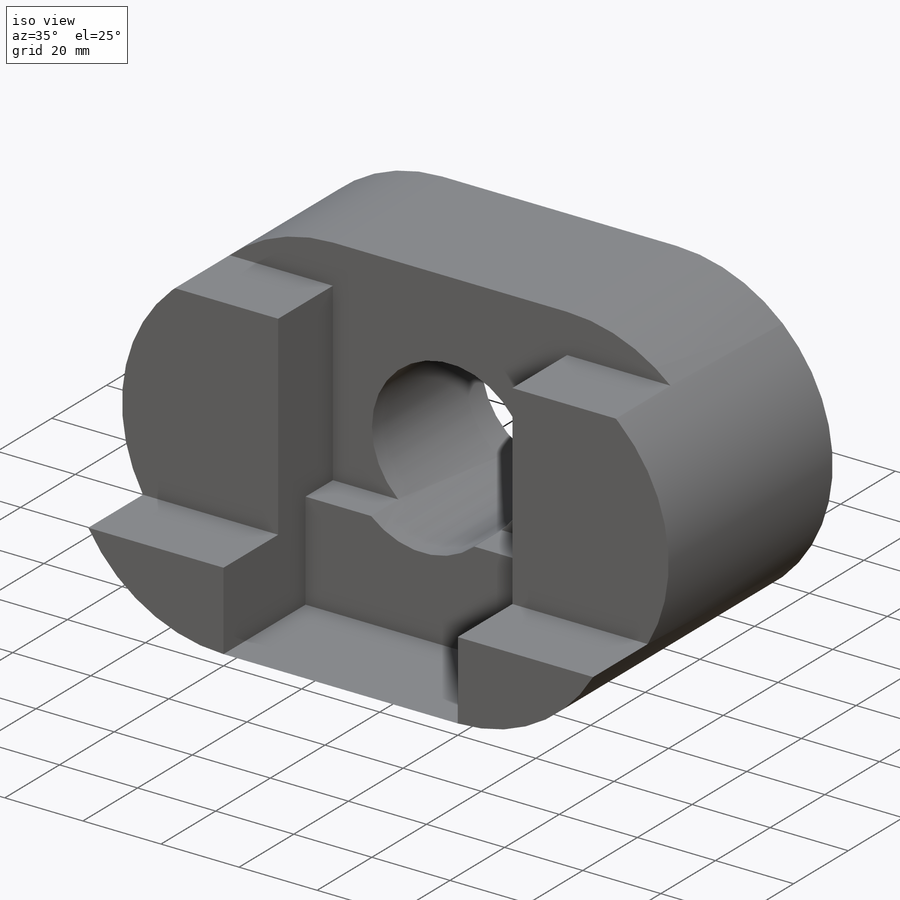
[diagram: iso view]
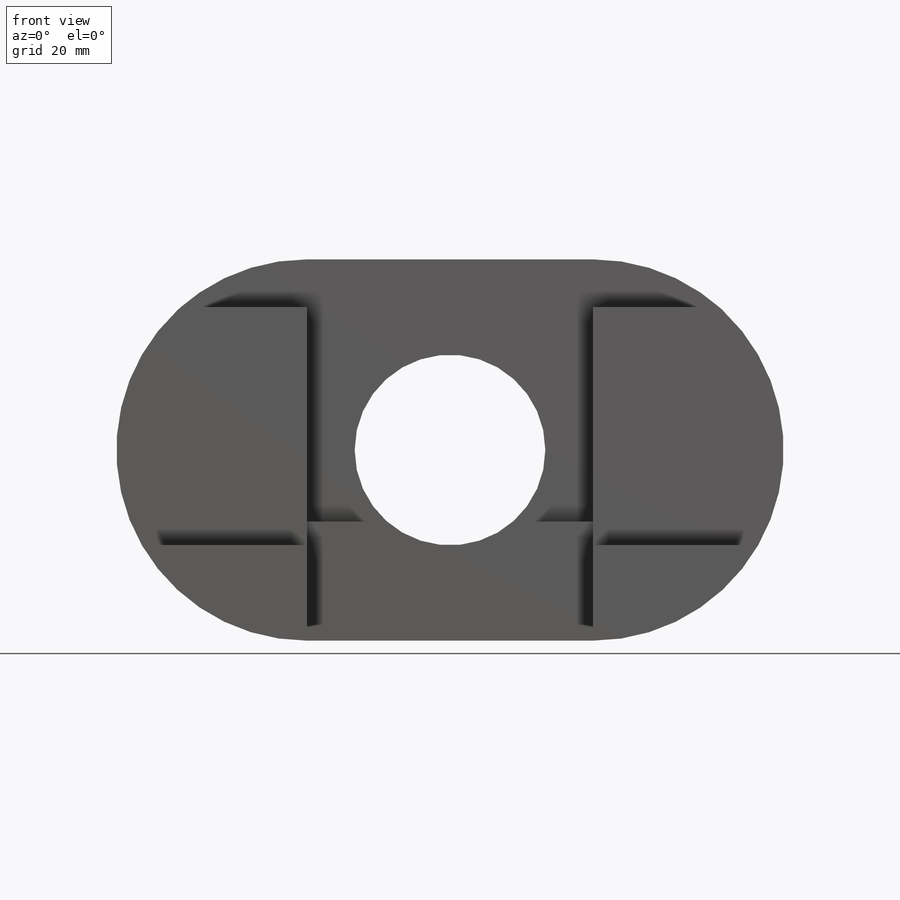
[diagram: front view]
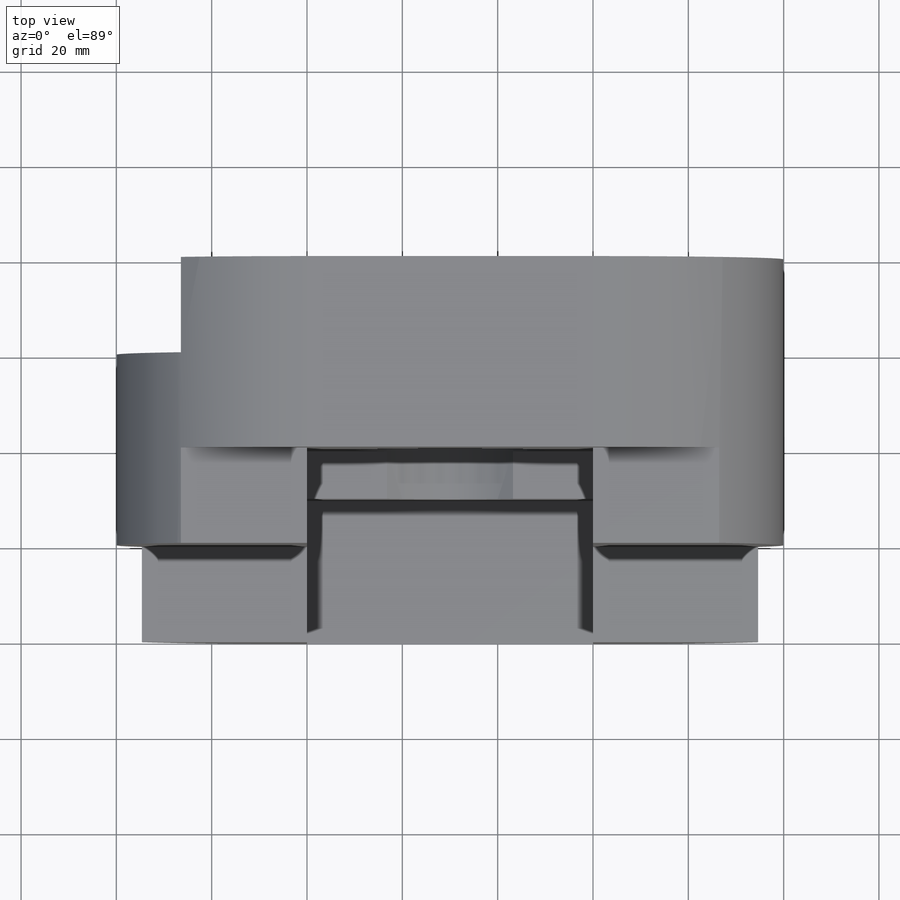
[diagram: top view]
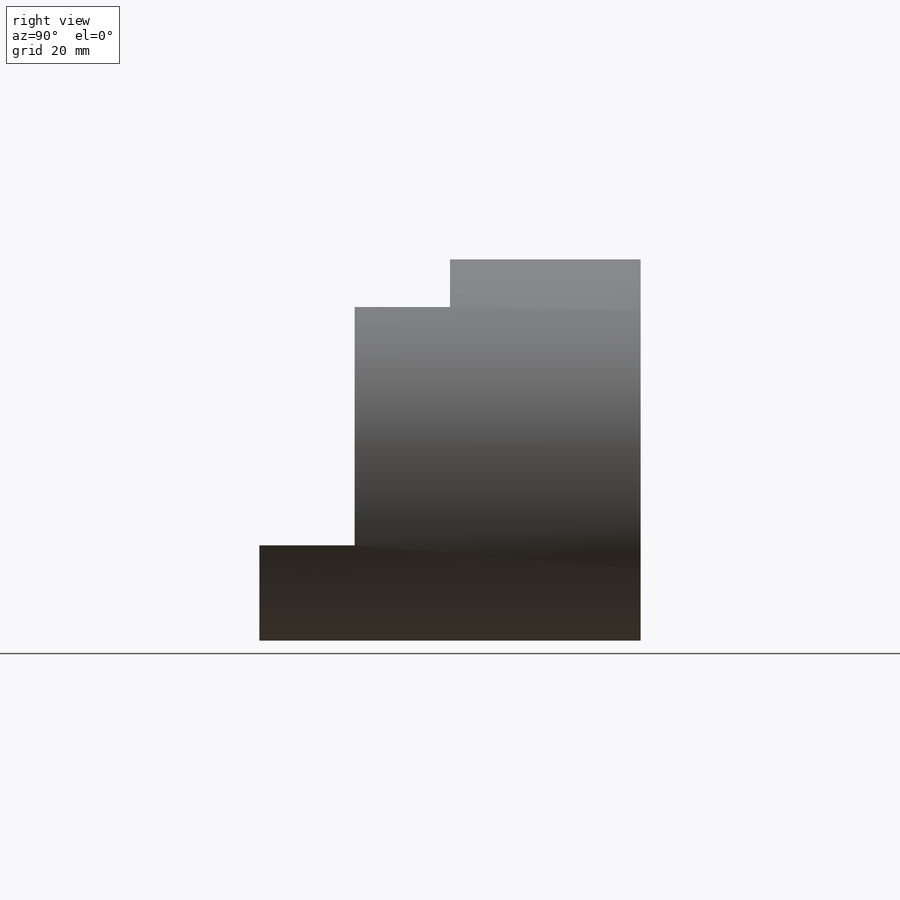
[diagram: right view]
SOLIDWORKS PART (.sldprt)
format: sldprt  version: not decoded by parser v0  size: 517,632 bytes
history: native  units: mm
features: sketch x27, cut_extrude x19, extrude x8, plane x3, material x1 (+13 scaffold rows collapsed)
feature tree (71):
  scaffold x13  (default folders/planes/origin — collapsed)
  material  "Material <not specified>"
  sketch  "Sketch1"  dims[c1.D2=40.0mm c1.D1=80.0mm c2.D2=60.0mm]
  extrude  "Boss-Extrude1"  Depth=80mm
  sketch  "Sketch2"  dims[D1=40.0mm D2=40.0mm D3=70.0mm D4=70.0mm]
  cut_extrude  "Cut-Extrude1"  Depth=80mm
  sketch  "Sketch4"  dims[D1=20.0mm D2=20.0mm]
  cut_extrude  "Cut-Extrude3"  Depth=170mm
  sketch  "Sketch5"  dims[D1=20.0mm D2=10.0mm]
  cut_extrude  "Cut-Extrude4"  Depth=170mm
  sketch  "Sketch6"  dims[c1.D1=60.0mm c1.D2=40.0mm c1.D3=~39.474771mm c2.D2=25.0mm c2.D3=40.0mm c2.D4=~38.949543mm c3.D3=60.0mm c4.D3=~22.619865deg]
  cut_extrude  "Cut-Extrude5"  Depth=30mm
  sketch  "Sketch7"
  cut_extrude  "Cut-Extrude6"  Depth=62mm
  sketch  "Sketch8"  dims[D1=25.0mm]
  extrude  "Boss-Extrude2"  Depth=30mm
  sketch  "Sketch9"
  cut_extrude  "Cut-Extrude7"  Depth=30mm
  sketch  "Sketch10"
  cut_extrude  "Cut-Extrude8"  Depth=30mm
  sketch  "Sketch11"
  cut_extrude  "Cut-Extrude9"  Depth=10mm
  sketch  "Sketch12"  dims[D1=40.0mm]
  extrude  "Boss-Extrude3"  Depth=10mm
  sketch  "Sketch17"
  extrude  "Boss-Extrude4"  Depth=20mm
  sketch  "Sketch18"  dims[D1=~37.195082mm]
  cut_extrude  "Cut-Extrude23"  Depth=20mm
  sketch  "Sketch19"
  cut_extrude  "Cut-Extrude25"  Depth=30mm
  sketch  "Sketch21"
  cut_extrude  "Cut-Extrude31"  Depth=30mm
  plane  "Plane1"  Offset=50mm
  sketch  "Sketch24"  dims[D1=10.0mm D2=30.0mm]
  cut_extrude  "Cut-Extrude32"  Depth=30mm
  sketch  "Sketch26"
  cut_extrude  "Cut-Extrude33"  Depth=57mm
  sketch  "Sketch29"
  cut_extrude  "Cut-Extrude37"  Depth=57mm
  sketch  "Sketch30"
  cut_extrude  "Cut-Extrude38"  Depth=57mm
  sketch  "Sketch31"
  cut_extrude  "Cut-Extrude39"  Depth=57mm
  sketch  "Sketch32"
  cut_extrude  "Cut-Extrude40"  Depth=57mm
  sketch  "Sketch33"  dims[c1.D1=25.0mm c2.D1=~0.537676deg c3.D1=5.0mm]
  extrude  "Boss-Extrude6"  Depth=30mm
  sketch  "Sketch34"
  extrude  "Boss-Extrude7"  Depth=10mm
  plane  "Plane2"  Offset=30mm
  sketch  "Sketch37"  dims[D1=20.0mm D2=10.0mm]
  cut_extrude  "Cut-Extrude47"  Depth=68mm
  sketch  "Sketch45"
  extrude  "Boss-Extrude10"  Depth=0.0001mm
  sketch  "Sketch46"
  extrude  "Boss-Extrude11"  Depth=20mm
  plane  "Plane5"  Offset=30mm
  sketch  "Sketch49"  dims[D1=20.0mm D2=10.0mm]
  cut_extrude  "Cut-Extrude54"  Depth=95mm
decode coverage: 39 of 54 modeling features carry decoded parameters
note: ~ marks probable driven/reference dimensions
note: suppression state not decoded; provenance and decode notes live in map.json
